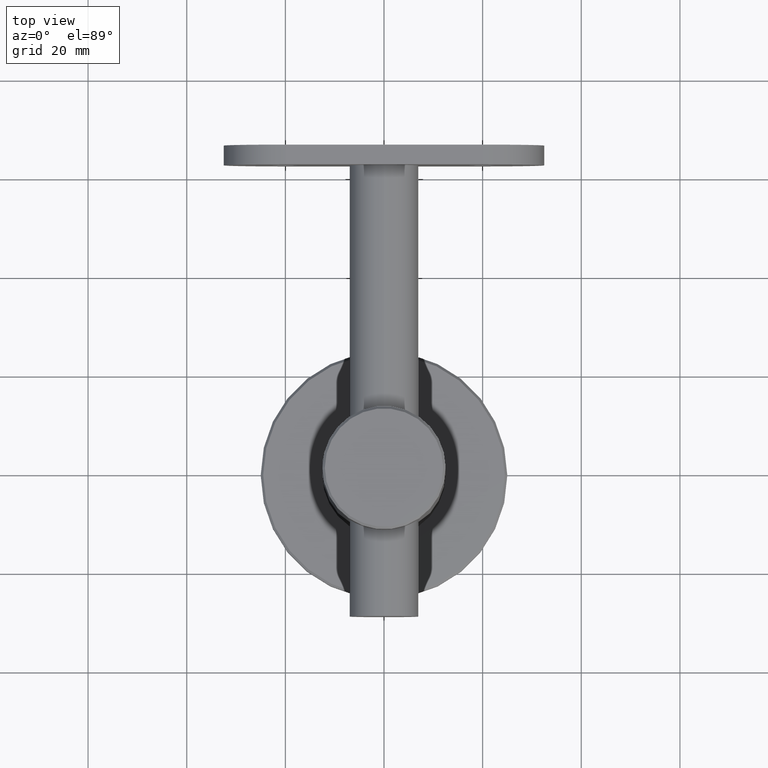
[diagram: clean part render]
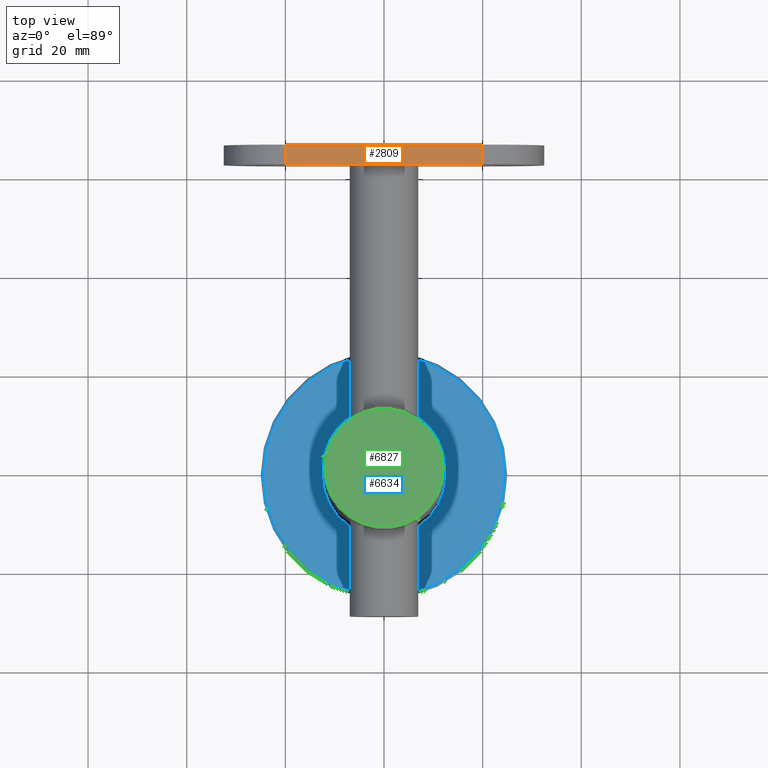
[diagram: same view with three faces highlighted in distinct colors, each labeled with its STEP entity id]
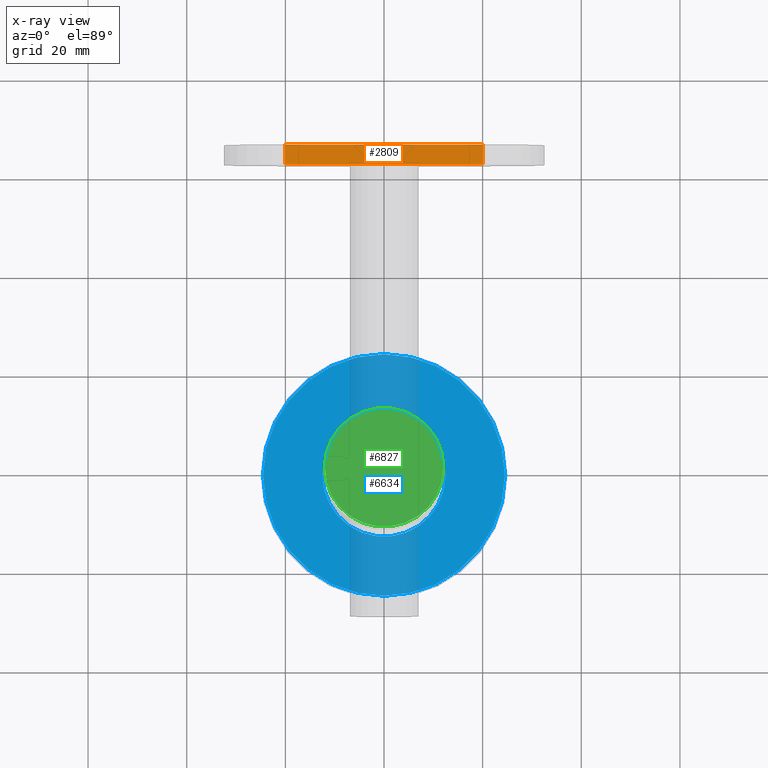
[diagram: x-ray of the same camera — body ghosted, the three highlighted faces saturated]
A machine part, top view with three faces highlighted in distinct colors.
The next image is the same camera in x-ray (body ghosted, the three faces saturated) — at least one of them is partly hidden behind the body in this view.
Their STEP definitions:

[orange] entity #2809 — the highlighted planar face has unit normal (0, 0, -1).
#133 = AXIS2_PLACEMENT_3D ( 'NONE', #11165, #14205, #1118 ) ;
#981 = VERTEX_POINT ( 'NONE', #4517 ) ;
#1118 = DIRECTION ( 'NONE',  ( 0.0000000000000000000, 0.0000000000000000000, 1.000000000000000000 ) ) ;
#1200 = CARTESIAN_POINT ( 'NONE',  ( 12.50000000000000000, -3.370833141065685400E-015, -20.00000000000000400 ) ) ;
#1457 = EDGE_CURVE ( 'NONE', #11234, #14831, #6839, .T. ) ;
#1655 = VERTEX_POINT ( 'NONE', #14547 ) ;
#2589 = CARTESIAN_POINT ( 'NONE',  ( 12.50000000000000000, 3.999999999999996400, 20.00000000000000000 ) ) ;
#2809 = ADVANCED_FACE ( 'NONE', ( #9608 ), #17143, .F. ) ;
#3108 = DIRECTION ( 'NONE',  ( 0.0000000000000000000, 1.000000000000000000, 0.0000000000000000000 ) ) ;
#3160 = VECTOR ( 'NONE', #18509, 1000.000000000000000 ) ;
#3195 = ORIENTED_EDGE ( 'NONE', *, *, #17523, .F. ) ;
#4410 = DIRECTION ( 'NONE',  ( -0.0000000000000000000, -0.0000000000000000000, -1.000000000000000000 ) ) ;
#4498 = ORIENTED_EDGE ( 'NONE', *, *, #4506, .T. ) ;
#4506 = EDGE_CURVE ( 'NONE', #14831, #981, #10485, .T. ) ;
#4517 = CARTESIAN_POINT ( 'NONE',  ( 12.50000000000000000, 3.999999999999996400, -20.00000000000000400 ) ) ;
#4884 = LINE ( 'NONE', #11638, #17168 ) ;
#5817 = LINE ( 'NONE', #2589, #10913 ) ;
#6839 = LINE ( 'NONE', #8188, #3160 ) ;
#7271 = EDGE_CURVE ( 'NONE', #1655, #11234, #5817, .T. ) ;
#8188 = CARTESIAN_POINT ( 'NONE',  ( 12.50000000000000000, -3.370833141065685400E-015, 32.50000000000000000 ) ) ;
#8568 = DIRECTION ( 'NONE',  ( -0.0000000000000000000, -1.000000000000000000, -0.0000000000000000000 ) ) ;
#9034 = CARTESIAN_POINT ( 'NONE',  ( 12.50000000000000000, 3.999999999999996400, -20.00000000000000400 ) ) ;
#9608 = FACE_OUTER_BOUND ( 'NONE', #13005, .T. ) ;
#10422 = ORIENTED_EDGE ( 'NONE', *, *, #1457, .T. ) ;
#10485 = LINE ( 'NONE', #9034, #14866 ) ;
#10913 = VECTOR ( 'NONE', #8568, 1000.000000000000000 ) ;
#11165 = CARTESIAN_POINT ( 'NONE',  ( 12.50000000000000000, 3.999999999999996400, 32.50000000000000000 ) ) ;
#11234 = VERTEX_POINT ( 'NONE', #13812 ) ;
#11638 = CARTESIAN_POINT ( 'NONE',  ( 12.50000000000000000, 3.999999999999996400, 32.50000000000000000 ) ) ;
#13005 = EDGE_LOOP ( 'NONE', ( #3195, #15992, #10422, #4498 ) ) ;
#13812 = CARTESIAN_POINT ( 'NONE',  ( 12.50000000000000000, -3.370833141065685400E-015, 20.00000000000000000 ) ) ;
#14205 = DIRECTION ( 'NONE',  ( -1.000000000000000000, 0.0000000000000000000, 0.0000000000000000000 ) ) ;
#14547 = CARTESIAN_POINT ( 'NONE',  ( 12.50000000000000000, 3.999999999999996400, 20.00000000000000000 ) ) ;
#14831 = VERTEX_POINT ( 'NONE', #1200 ) ;
#14866 = VECTOR ( 'NONE', #3108, 1000.000000000000000 ) ;
#15992 = ORIENTED_EDGE ( 'NONE', *, *, #7271, .T. ) ;
#17143 = PLANE ( 'NONE',  #133 ) ;
#17168 = VECTOR ( 'NONE', #4410, 1000.000000000000000 ) ;
#17523 = EDGE_CURVE ( 'NONE', #1655, #981, #4884, .T. ) ;
#18509 = DIRECTION ( 'NONE',  ( -0.0000000000000000000, -0.0000000000000000000, -1.000000000000000000 ) ) ;

[blue] entity #6634 — the highlighted planar face has unit normal (0, 0, 1).
#73 = FACE_OUTER_BOUND ( 'NONE', #9336, .T. ) ;
#461 = DIRECTION ( 'NONE',  ( 0.0000000000000000000, 0.0000000000000000000, 1.000000000000000000 ) ) ;
#881 = DIRECTION ( 'NONE',  ( 0.0000000000000000000, 0.0000000000000000000, 1.000000000000000000 ) ) ;
#1132 = AXIS2_PLACEMENT_3D ( 'NONE', #5188, #881, #11192 ) ;
#3462 = EDGE_CURVE ( 'NONE', #4577, #4577, #16996, .T. ) ;
#4351 = VERTEX_POINT ( 'NONE', #7915 ) ;
#4577 = VERTEX_POINT ( 'NONE', #6415 ) ;
#5019 = CIRCLE ( 'NONE', #6588, 12.50000000000000000 ) ;
#5071 = AXIS2_PLACEMENT_3D ( 'NONE', #18300, #16827, #10861 ) ;
#5188 = CARTESIAN_POINT ( 'NONE',  ( 0.0000000000000000000, 0.0000000000000000000, 5.000000000000000000 ) ) ;
#6415 = CARTESIAN_POINT ( 'NONE',  ( 24.49999999999998200, 0.0000000000000000000, 5.000000000000000000 ) ) ;
#6588 = AXIS2_PLACEMENT_3D ( 'NONE', #9310, #461, #9557 ) ;
#6634 = ADVANCED_FACE ( 'NONE', ( #73, #17202 ), #7507, .T. ) ;
#7507 = PLANE ( 'NONE',  #5071 ) ;
#7915 = CARTESIAN_POINT ( 'NONE',  ( 12.50000000000000000, 0.0000000000000000000, 5.000000000000004400 ) ) ;
#9310 = CARTESIAN_POINT ( 'NONE',  ( 0.0000000000000000000, 0.0000000000000000000, 5.000000000000004400 ) ) ;
#9336 = EDGE_LOOP ( 'NONE', ( #12576 ) ) ;
#9557 = DIRECTION ( 'NONE',  ( 1.000000000000000000, 0.0000000000000000000, 0.0000000000000000000 ) ) ;
#10861 = DIRECTION ( 'NONE',  ( 1.000000000000000000, 0.0000000000000000000, -0.0000000000000000000 ) ) ;
#11192 = DIRECTION ( 'NONE',  ( 1.000000000000000000, 0.0000000000000000000, 0.0000000000000000000 ) ) ;
#11228 = EDGE_CURVE ( 'NONE', #4351, #4351, #5019, .T. ) ;
#11917 = ORIENTED_EDGE ( 'NONE', *, *, #11228, .F. ) ;
#12048 = EDGE_LOOP ( 'NONE', ( #11917 ) ) ;
#12576 = ORIENTED_EDGE ( 'NONE', *, *, #3462, .T. ) ;
#16827 = DIRECTION ( 'NONE',  ( 0.0000000000000000000, 0.0000000000000000000, 1.000000000000000000 ) ) ;
#16996 = CIRCLE ( 'NONE', #1132, 24.49999999999998200 ) ;
#17202 = FACE_BOUND ( 'NONE', #12048, .T. ) ;
#18300 = CARTESIAN_POINT ( 'NONE',  ( 0.0000000000000000000, 0.0000000000000000000, 5.000000000000000000 ) ) ;

[green] entity #6827 — the highlighted planar face has unit normal (0, 0, -1).
#767 = ORIENTED_EDGE ( 'NONE', *, *, #19142, .T. ) ;
#2129 = AXIS2_PLACEMENT_3D ( 'NONE', #3467, #18099, #9260 ) ;
#3335 = PLANE ( 'NONE',  #2129 ) ;
#3467 = CARTESIAN_POINT ( 'NONE',  ( 0.0000000000000000000, 0.0000000000000000000, 93.00000000000000000 ) ) ;
#6827 = ADVANCED_FACE ( 'NONE', ( #16741 ), #3335, .F. ) ;
#9205 = CARTESIAN_POINT ( 'NONE',  ( -11.99999999999992400, 0.0000000000000000000, 93.00000000000000000 ) ) ;
#9260 = DIRECTION ( 'NONE',  ( -1.000000000000000000, 0.0000000000000000000, -0.0000000000000000000 ) ) ;
#10708 = AXIS2_PLACEMENT_3D ( 'NONE', #13384, #13511, #14865 ) ;
#11493 = CIRCLE ( 'NONE', #10708, 11.99999999999992400 ) ;
#13384 = CARTESIAN_POINT ( 'NONE',  ( 0.0000000000000000000, 0.0000000000000000000, 93.00000000000000000 ) ) ;
#13511 = DIRECTION ( 'NONE',  ( -0.0000000000000000000, -0.0000000000000000000, 1.000000000000000000 ) ) ;
#14865 = DIRECTION ( 'NONE',  ( -1.000000000000000000, 0.0000000000000000000, 0.0000000000000000000 ) ) ;
#15227 = EDGE_LOOP ( 'NONE', ( #767 ) ) ;
#16741 = FACE_OUTER_BOUND ( 'NONE', #15227, .T. ) ;
#18099 = DIRECTION ( 'NONE',  ( 0.0000000000000000000, 0.0000000000000000000, -1.000000000000000000 ) ) ;
#18231 = VERTEX_POINT ( 'NONE', #9205 ) ;
#19142 = EDGE_CURVE ( 'NONE', #18231, #18231, #11493, .T. ) ;